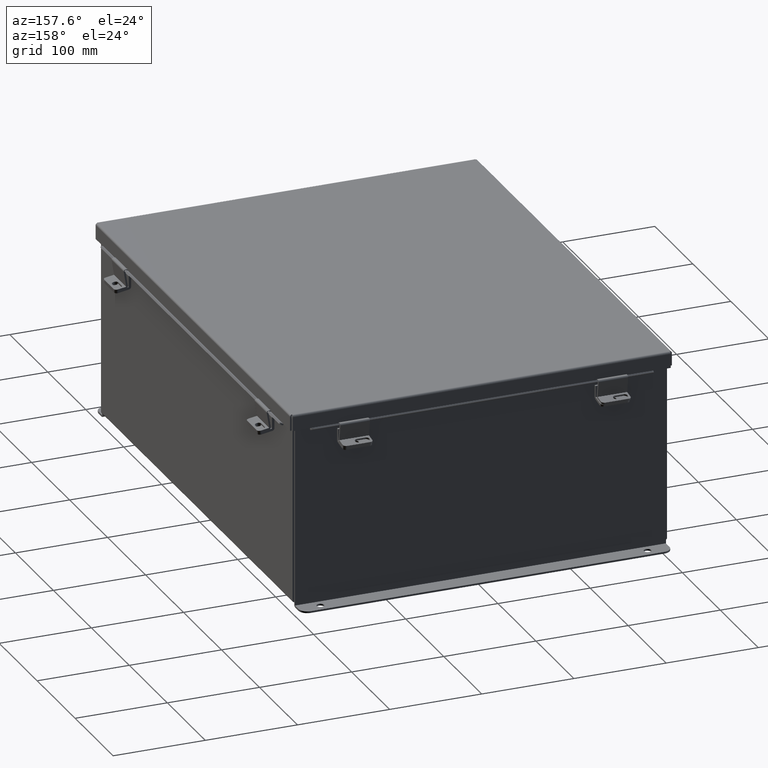
[diagram: clean part render]
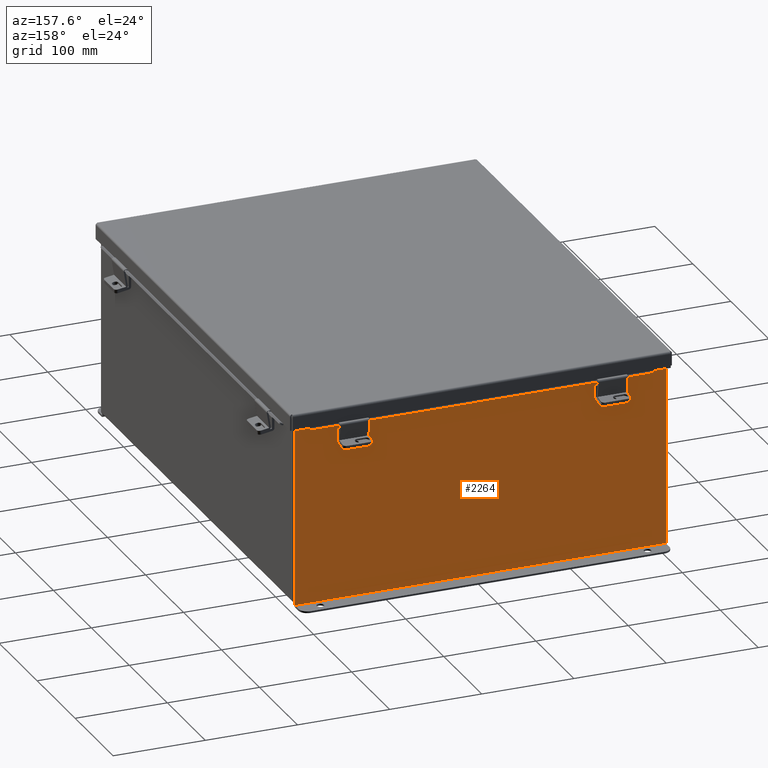
[diagram: same view with one face highlighted and labeled with its STEP entity id]
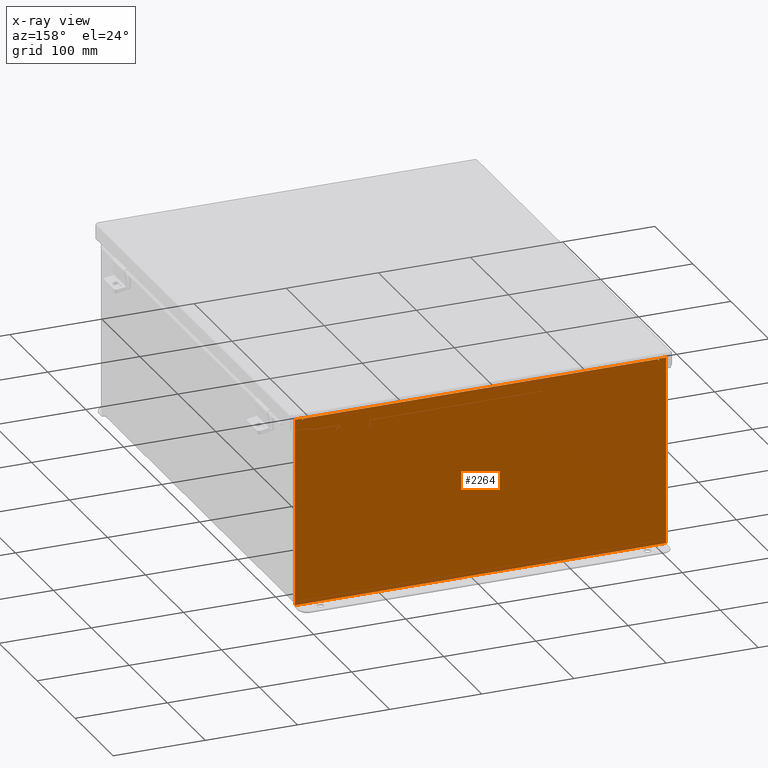
[diagram: x-ray of the same camera — body ghosted, the highlighted face saturated]
A machine part, auxiliary view. The second image highlights one B-rep face of the part: STEP entity #2264.
The next image is the same camera in x-ray: the body ghosted, the highlighted face saturated — about 0% of this face is hidden behind the body in this view.
In plain terms, the highlighted planar face has unit normal (0, -1, 0).
Its self-contained STEP definition (entity closure, byte-faithful):
#7 = ORIENTED_EDGE ( 'NONE', *, *, #7046, .T. ) ;
#86 = CARTESIAN_POINT ( 'NONE',  ( -7.582300000000000000, 2.185478394931410600E-015, 3.912299999999998800 ) ) ;
#153 = LINE ( 'NONE', #309, #4435 ) ;
#251 = DIRECTION ( 'NONE',  ( 0.0000000000000000000, 0.0000000000000000000, -1.000000000000000000 ) ) ;
#299 = DIRECTION ( 'NONE',  ( -0.0000000000000000000, -0.0000000000000000000, 1.000000000000000000 ) ) ;
#309 = CARTESIAN_POINT ( 'NONE',  ( -7.925299999999998200, 0.0000000000000000000, 3.925299999999999600 ) ) ;
#567 = ORIENTED_EDGE ( 'NONE', *, *, #3459, .T. ) ;
#707 = DIRECTION ( 'NONE',  ( 0.0000000000000000000, 0.0000000000000000000, -1.000000000000000000 ) ) ;
#718 = DIRECTION ( 'NONE',  ( -0.0000000000000000000, 1.000000000000000000, -0.0000000000000000000 ) ) ;
#828 = VERTEX_POINT ( 'NONE', #8177 ) ;
#1169 = CARTESIAN_POINT ( 'NONE',  ( -7.925299999999998200, 0.0000000000000000000, 3.925299999999999600 ) ) ;
#1221 = LINE ( 'NONE', #5087, #6005 ) ;
#1356 = AXIS2_PLACEMENT_3D ( 'NONE', #5216, #718, #707 ) ;
#1465 = DIRECTION ( 'NONE',  ( 0.0000000000000000000, 0.0000000000000000000, 1.000000000000000000 ) ) ;
#1486 = VERTEX_POINT ( 'NONE', #1169 ) ;
#1534 = DIRECTION ( 'NONE',  ( -4.340572780399910900E-014, 0.0000000000000000000, -1.000000000000000000 ) ) ;
#1537 = CARTESIAN_POINT ( 'NONE',  ( 7.925300000000000900, 0.0000000000000000000, -4.099300000000000400 ) ) ;
#1569 = AXIS2_PLACEMENT_3D ( 'NONE', #5301, #1578, #2383 ) ;
#1578 = DIRECTION ( 'NONE',  ( -0.0000000000000000000, 1.000000000000000000, -0.0000000000000000000 ) ) ;
#1584 = VERTEX_POINT ( 'NONE', #4330 ) ;
#1676 = CARTESIAN_POINT ( 'NONE',  ( -7.925299999999998200, 0.0000000000000000000, 3.925299999999999600 ) ) ;
#2164 = EDGE_CURVE ( 'NONE', #828, #8200, #6769, .T. ) ;
#2264 = ADVANCED_FACE ( 'NONE', ( #6504 ), #7511, .F. ) ;
#2360 = CIRCLE ( 'NONE', #1569, 0.01867500000000003900 ) ;
#2383 = DIRECTION ( 'NONE',  ( 0.0000000000000000000, 0.0000000000000000000, -1.000000000000000000 ) ) ;
#2429 = EDGE_CURVE ( 'NONE', #3610, #3998, #8999, .T. ) ;
#2543 = CARTESIAN_POINT ( 'NONE',  ( -7.619650000000000000, 0.0000000000000000000, 3.925299999999999600 ) ) ;
#2740 = VECTOR ( 'NONE', #1465, 39.37007874015748100 ) ;
#2881 = LINE ( 'NONE', #6753, #2740 ) ;
#2906 = DIRECTION ( 'NONE',  ( 1.000000000000000000, 8.208677865577646300E-017, -0.0000000000000000000 ) ) ;
#3237 = ORIENTED_EDGE ( 'NONE', *, *, #2429, .F. ) ;
#3459 = EDGE_CURVE ( 'NONE', #3610, #1584, #6749, .T. ) ;
#3473 = LINE ( 'NONE', #4976, #3580 ) ;
#3475 = ORIENTED_EDGE ( 'NONE', *, *, #6946, .F. ) ;
#3536 = EDGE_LOOP ( 'NONE', ( #6035, #5467, #3237, #567, #9219, #7083, #9439, #5206, #7, #3475, #3919, #9823 ) ) ;
#3580 = VECTOR ( 'NONE', #9626, 39.37007874015748100 ) ;
#3610 = VERTEX_POINT ( 'NONE', #3629 ) ;
#3629 = CARTESIAN_POINT ( 'NONE',  ( -7.582300000000000000, 2.185478394931410600E-015, 3.912299999999998800 ) ) ;
#3674 = DIRECTION ( 'NONE',  ( 0.0000000000000000000, -0.0000000000000000000, -1.000000000000000000 ) ) ;
#3870 = CARTESIAN_POINT ( 'NONE',  ( -7.582300000000000000, 0.0000000000000000000, 0.0000000000000000000 ) ) ;
#3919 = ORIENTED_EDGE ( 'NONE', *, *, #5213, .T. ) ;
#3998 = VERTEX_POINT ( 'NONE', #9364 ) ;
#4012 = EDGE_CURVE ( 'NONE', #1486, #7205, #1221, .T. ) ;
#4024 = EDGE_CURVE ( 'NONE', #828, #5248, #153, .T. ) ;
#4142 = VECTOR ( 'NONE', #1534, 39.37007874015748100 ) ;
#4178 = DIRECTION ( 'NONE',  ( 1.000000000000000000, 0.0000000000000000000, 0.0000000000000000000 ) ) ;
#4330 = CARTESIAN_POINT ( 'NONE',  ( 7.582300000000000000, 0.0000000000000000000, 3.912299999999998800 ) ) ;
#4435 = VECTOR ( 'NONE', #6104, 39.37007874015748100 ) ;
#4575 = VERTEX_POINT ( 'NONE', #8348 ) ;
#4755 = AXIS2_PLACEMENT_3D ( 'NONE', #5946, #9011, #3674 ) ;
#4812 = DIRECTION ( 'NONE',  ( 1.000000000000000000, 0.0000000000000000000, 0.0000000000000000000 ) ) ;
#4913 = VERTEX_POINT ( 'NONE', #1537 ) ;
#4976 = CARTESIAN_POINT ( 'NONE',  ( -7.619650000000000000, 0.0000000000000000000, 0.0000000000000000000 ) ) ;
#5087 = CARTESIAN_POINT ( 'NONE',  ( -7.925299999999998200, 0.0000000000000000000, 3.925299999999999600 ) ) ;
#5206 = ORIENTED_EDGE ( 'NONE', *, *, #4024, .T. ) ;
#5213 = EDGE_CURVE ( 'NONE', #4575, #1486, #8471, .T. ) ;
#5216 = CARTESIAN_POINT ( 'NONE',  ( -7.600974999999999100, 0.0000000000000000000, 3.874949999999998300 ) ) ;
#5248 = VERTEX_POINT ( 'NONE', #5845 ) ;
#5301 = CARTESIAN_POINT ( 'NONE',  ( 7.600974999999999100, 0.0000000000000000000, 3.874949999999998300 ) ) ;
#5467 = ORIENTED_EDGE ( 'NONE', *, *, #6040, .F. ) ;
#5821 = EDGE_CURVE ( 'NONE', #8200, #7565, #2360, .T. ) ;
#5845 = CARTESIAN_POINT ( 'NONE',  ( 7.925300000000000900, 0.0000000000000000000, 3.925299999999999600 ) ) ;
#5862 = CARTESIAN_POINT ( 'NONE',  ( 7.619649999999831300, 0.0000000000000000000, -3.305536072333758300E-013 ) ) ;
#5946 = CARTESIAN_POINT ( 'NONE',  ( 0.0000000000000000000, 0.0000000000000000000, 0.0000000000000000000 ) ) ;
#6005 = VECTOR ( 'NONE', #4178, 39.37007874015748100 ) ;
#6035 = ORIENTED_EDGE ( 'NONE', *, *, #8299, .F. ) ;
#6040 = EDGE_CURVE ( 'NONE', #3998, #7230, #7468, .T. ) ;
#6104 = DIRECTION ( 'NONE',  ( 1.000000000000000000, 0.0000000000000000000, 0.0000000000000000000 ) ) ;
#6504 = FACE_OUTER_BOUND ( 'NONE', #3536, .T. ) ;
#6749 = LINE ( 'NONE', #86, #9787 ) ;
#6753 = CARTESIAN_POINT ( 'NONE',  ( 7.582300000000000000, 0.0000000000000000000, 0.0000000000000000000 ) ) ;
#6769 = LINE ( 'NONE', #5862, #4142 ) ;
#6946 = EDGE_CURVE ( 'NONE', #4575, #4913, #8393, .T. ) ;
#7046 = EDGE_CURVE ( 'NONE', #5248, #4913, #7697, .T. ) ;
#7080 = CARTESIAN_POINT ( 'NONE',  ( -7.619649999999998300, 0.0000000000000000000, 3.874949999999998300 ) ) ;
#7083 = ORIENTED_EDGE ( 'NONE', *, *, #5821, .F. ) ;
#7205 = VERTEX_POINT ( 'NONE', #2543 ) ;
#7230 = VERTEX_POINT ( 'NONE', #7080 ) ;
#7428 = CARTESIAN_POINT ( 'NONE',  ( -7.925299999999998200, 0.0000000000000000000, -4.099300000000000400 ) ) ;
#7468 = CIRCLE ( 'NONE', #1356, 0.01867500000000003900 ) ;
#7511 = PLANE ( 'NONE',  #4755 ) ;
#7565 = VERTEX_POINT ( 'NONE', #7620 ) ;
#7620 = CARTESIAN_POINT ( 'NONE',  ( 7.582300000000000000, 0.0000000000000000000, 3.874949999999998300 ) ) ;
#7697 = LINE ( 'NONE', #8967, #7831 ) ;
#7831 = VECTOR ( 'NONE', #9641, 39.37007874015748100 ) ;
#8147 = VECTOR ( 'NONE', #2906, 39.37007874015748100 ) ;
#8177 = CARTESIAN_POINT ( 'NONE',  ( 7.619650000000001800, 0.0000000000000000000, 3.925299999999999600 ) ) ;
#8200 = VERTEX_POINT ( 'NONE', #8729 ) ;
#8299 = EDGE_CURVE ( 'NONE', #7230, #7205, #3473, .T. ) ;
#8348 = CARTESIAN_POINT ( 'NONE',  ( -7.925299999999998200, 0.0000000000000000000, -4.099300000000000400 ) ) ;
#8351 = VECTOR ( 'NONE', #299, 39.37007874015748100 ) ;
#8393 = LINE ( 'NONE', #7428, #8147 ) ;
#8471 = LINE ( 'NONE', #1676, #8351 ) ;
#8553 = EDGE_CURVE ( 'NONE', #7565, #1584, #2881, .T. ) ;
#8729 = CARTESIAN_POINT ( 'NONE',  ( 7.619649999999998300, 0.0000000000000000000, 3.874949999999998300 ) ) ;
#8967 = CARTESIAN_POINT ( 'NONE',  ( 7.925300000000000900, 0.0000000000000000000, 3.925299999999999600 ) ) ;
#8999 = LINE ( 'NONE', #3870, #9100 ) ;
#9011 = DIRECTION ( 'NONE',  ( 0.0000000000000000000, -1.000000000000000000, 0.0000000000000000000 ) ) ;
#9100 = VECTOR ( 'NONE', #251, 39.37007874015748100 ) ;
#9219 = ORIENTED_EDGE ( 'NONE', *, *, #8553, .F. ) ;
#9364 = CARTESIAN_POINT ( 'NONE',  ( -7.582300000000000000, 0.0000000000000000000, 3.874949999999998300 ) ) ;
#9439 = ORIENTED_EDGE ( 'NONE', *, *, #2164, .F. ) ;
#9626 = DIRECTION ( 'NONE',  ( 0.0000000000000000000, 0.0000000000000000000, 1.000000000000000000 ) ) ;
#9641 = DIRECTION ( 'NONE',  ( 0.0000000000000000000, 0.0000000000000000000, -1.000000000000000000 ) ) ;
#9787 = VECTOR ( 'NONE', #4812, 39.37007874015748100 ) ;
#9823 = ORIENTED_EDGE ( 'NONE', *, *, #4012, .T. ) ;